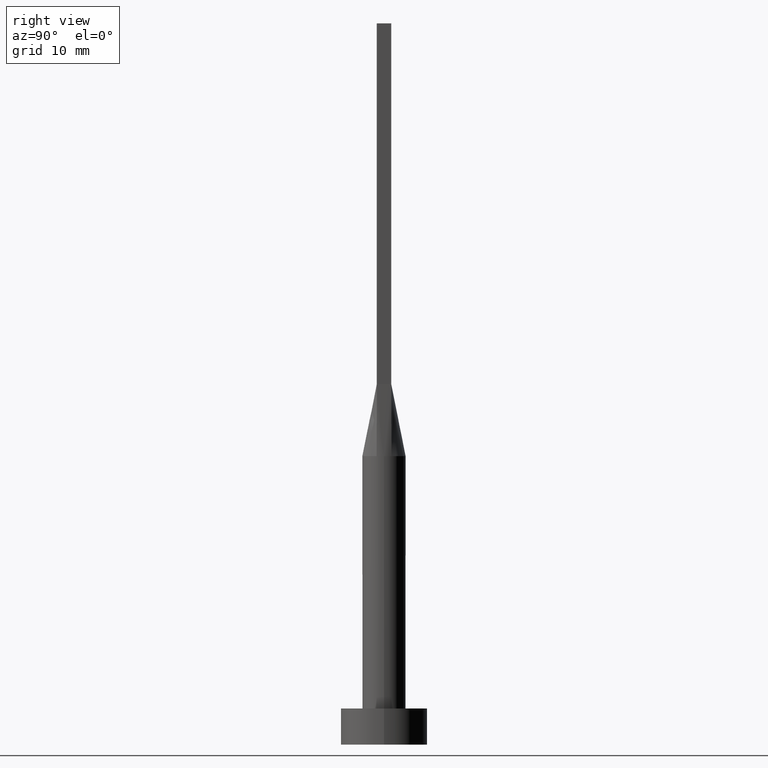
[diagram: clean part render]
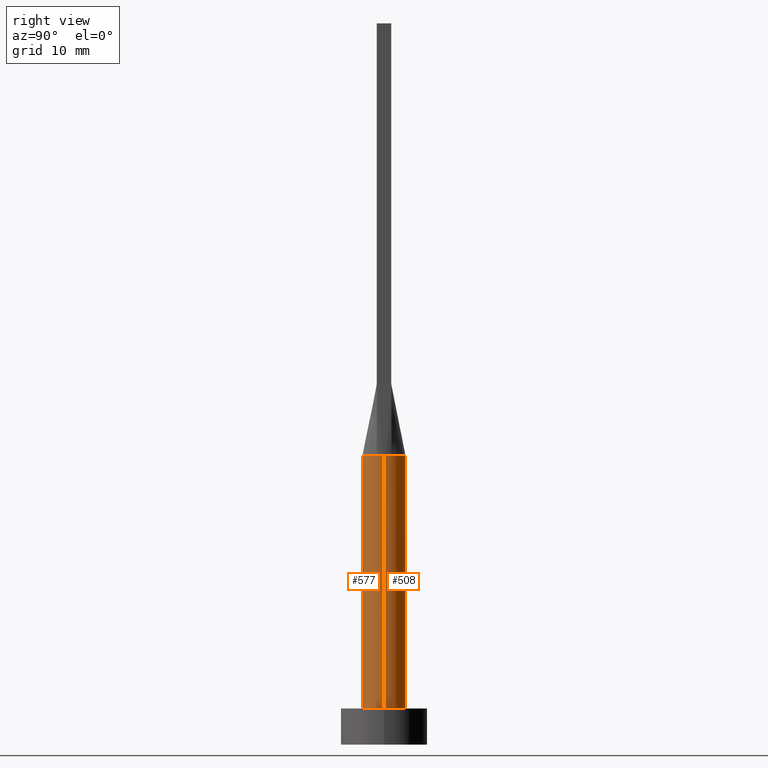
[diagram: same view with one multi-face feature highlighted, each face labeled with its STEP entity id]
A machine part, right view. The highlighted faces form ONE feature: a constant-radius fillet chain: 2 tangent blend faces with common blend radius 3 mm. The faces share edges in the B-rep.
Their STEP definitions:
[1] entity #508 (Cylinder):
#1 = B_SPLINE_CURVE_WITH_KNOTS ( 'NONE', 3,
 ( #343, #110, #436, #561, #565, #244, #160, #196, #381, #192, #434, #560, #569, #388, #119, #246, #157, #336 ),
 .UNSPECIFIED., .F., .F.,
 ( 4, 2, 2, 2, 2, 2, 2, 2, 4 ),
 ( 0.000000000000000000, 0.1249999999999998890, 0.2499999999999997780, 0.3749999999999997780, 0.4999999999999997780, 0.6249999999999997780, 0.7499999999999997780, 0.8749999999999998890, 1.000000000000000000 ),
 .UNSPECIFIED. ) ;
#6 = DIRECTION ( 'NONE',  ( -0.000000000000000000, -0.000000000000000000, -1.000000000000000000 ) ) ;
#32 = VERTEX_POINT ( 'NONE', #358 ) ;
#33 = CARTESIAN_POINT ( 'NONE',  ( 0.000000000000000000, 0.000000000000000000, 40.00000000000000000 ) ) ;
#38 = CARTESIAN_POINT ( 'NONE',  ( 3.000000000000000444, 3.673940397442060361E-16, 40.00000000000000000 ) ) ;
#45 = AXIS2_PLACEMENT_3D ( 'NONE', #169, #533, #166 ) ;
#46 = CARTESIAN_POINT ( 'NONE',  ( -3.000000000000000444, 0.000000000000000000, 5.000000000000000000 ) ) ;
#56 = CIRCLE ( 'NONE', #45, 3.000000000000000444 ) ;
#63 = AXIS2_PLACEMENT_3D ( 'NONE', #33, #202, #349 ) ;
#71 = CYLINDRICAL_SURFACE ( 'NONE', #310, 3.000000000000000444 ) ;
#93 = EDGE_CURVE ( 'NONE', #330, #32, #438, .T. ) ;
#95 = ORIENTED_EDGE ( 'NONE', *, *, #441, .F. ) ;
#106 = VERTEX_POINT ( 'NONE', #46 ) ;
#110 = CARTESIAN_POINT ( 'NONE',  ( 2.739088299662392867, 1.246032108968142538, 40.00000000000000711 ) ) ;
#114 = CIRCLE ( 'NONE', #63, 3.000000000000000444 ) ;
#118 = EDGE_CURVE ( 'NONE', #457, #106, #408, .T. ) ;
#119 = CARTESIAN_POINT ( 'NONE',  ( -2.314486317179579977, 1.928337902455808051, 40.00000000000000000 ) ) ;
#128 = CARTESIAN_POINT ( 'NONE',  ( 0.000000000000000000, 0.000000000000000000, 40.00000000000000000 ) ) ;
#139 = CARTESIAN_POINT ( 'NONE',  ( 2.819412401233197141, 1.025240989080170806, 40.00000000000000000 ) ) ;
#153 = ORIENTED_EDGE ( 'NONE', *, *, #425, .F. ) ;
#157 = CARTESIAN_POINT ( 'NONE',  ( -2.739088299662392423, 1.246032108968142316, 40.00000000000000000 ) ) ;
#158 = ORIENTED_EDGE ( 'NONE', *, *, #93, .T. ) ;
#160 = CARTESIAN_POINT ( 'NONE',  ( 1.338960936578149630, 2.706038443291637563, 40.00000000000000000 ) ) ;
#164 = EDGE_CURVE ( 'NONE', #32, #106, #56, .T. ) ;
#166 = DIRECTION ( 'NONE',  ( 1.000000000000000000, 0.000000000000000000, 0.000000000000000000 ) ) ;
#169 = CARTESIAN_POINT ( 'NONE',  ( 0.000000000000000000, 0.000000000000000000, 5.000000000000000000 ) ) ;
#192 = CARTESIAN_POINT ( 'NONE',  ( -0.3502136323054376721, 2.999999999999999112, 39.99999999999999289 ) ) ;
#194 = VERTEX_POINT ( 'NONE', #340 ) ;
#196 = CARTESIAN_POINT ( 'NONE',  ( 0.6998073349918605413, 2.936959335800557014, 40.00000000000000000 ) ) ;
#202 = DIRECTION ( 'NONE',  ( 0.000000000000000000, 0.000000000000000000, 1.000000000000000000 ) ) ;
#219 = FACE_OUTER_BOUND ( 'NONE', #539, .T. ) ;
#244 = CARTESIAN_POINT ( 'NONE',  ( 1.627925520694712080, 2.539128397820340943, 40.00000000000000000 ) ) ;
#246 = CARTESIAN_POINT ( 'NONE',  ( -2.625980160873452096, 1.476334031700886396, 39.99999999999998579 ) ) ;
#248 = CIRCLE ( 'NONE', #374, 3.000000000000000444 ) ;
#262 = DIRECTION ( 'NONE',  ( 1.000000000000000000, 0.000000000000000000, 0.000000000000000000 ) ) ;
#294 = DIRECTION ( 'NONE',  ( -1.000000000000000000, 0.000000000000000000, 0.000000000000000000 ) ) ;
#297 = VECTOR ( 'NONE', #6, 1000.000000000000000 ) ;
#305 = VECTOR ( 'NONE', #501, 1000.000000000000000 ) ;
#310 = AXIS2_PLACEMENT_3D ( 'NONE', #433, #342, #294 ) ;
#330 = VERTEX_POINT ( 'NONE', #357 ) ;
#336 = CARTESIAN_POINT ( 'NONE',  ( -2.819429393986302657, 1.025247261300842760, 40.00000000000000000 ) ) ;
#340 = CARTESIAN_POINT ( 'NONE',  ( -2.819429393986302657, 1.025247261300842760, 40.00000000000000000 ) ) ;
#342 = DIRECTION ( 'NONE',  ( -0.000000000000000000, -0.000000000000000000, -1.000000000000000000 ) ) ;
#343 = CARTESIAN_POINT ( 'NONE',  ( 2.819412401233197141, 1.025240989080170806, 40.00000000000000000 ) ) ;
#349 = DIRECTION ( 'NONE',  ( 1.000000000000000000, 0.000000000000000000, 0.000000000000000000 ) ) ;
#357 = CARTESIAN_POINT ( 'NONE',  ( 3.000000000000000444, 7.514166843208536743E-18, 39.99999999999999289 ) ) ;
#358 = CARTESIAN_POINT ( 'NONE',  ( 3.000000000000000444, 3.673940397442060361E-16, 5.000000000000000000 ) ) ;
#374 = AXIS2_PLACEMENT_3D ( 'NONE', #128, #546, #262 ) ;
#377 = ORIENTED_EDGE ( 'NONE', *, *, #164, .T. ) ;
#380 = VERTEX_POINT ( 'NONE', #139 ) ;
#381 = CARTESIAN_POINT ( 'NONE',  ( 0.3502136323054376721, 3.000000000000000444, 40.00000000000000000 ) ) ;
#383 = EDGE_CURVE ( 'NONE', #330, #380, #248, .T. ) ;
#388 = CARTESIAN_POINT ( 'NONE',  ( -2.115507543051069916, 2.149870311632977593, 39.99999999999999289 ) ) ;
#408 = LINE ( 'NONE', #581, #297 ) ;
#425 = EDGE_CURVE ( 'NONE', #380, #194, #1, .T. ) ;
#433 = CARTESIAN_POINT ( 'NONE',  ( 0.000000000000000000, 0.000000000000000000, 40.00000000000000000 ) ) ;
#434 = CARTESIAN_POINT ( 'NONE',  ( -0.6998073349918608743, 2.936959335800557014, 40.00000000000000000 ) ) ;
#436 = CARTESIAN_POINT ( 'NONE',  ( 2.625980160873452540, 1.476334031700886618, 40.00000000000000000 ) ) ;
#438 = LINE ( 'NONE', #38, #305 ) ;
#441 = EDGE_CURVE ( 'NONE', #194, #457, #114, .T. ) ;
#457 = VERTEX_POINT ( 'NONE', #511 ) ;
#501 = DIRECTION ( 'NONE',  ( -0.000000000000000000, -0.000000000000000000, -1.000000000000000000 ) ) ;
#508 = ADVANCED_FACE ( 'NONE', ( #219 ), #71, .T. ) ;
#511 = CARTESIAN_POINT ( 'NONE',  ( -3.000000000000000444, -1.370010780910363192E-16, 39.99999999999999289 ) ) ;
#514 = ORIENTED_EDGE ( 'NONE', *, *, #383, .F. ) ;
#533 = DIRECTION ( 'NONE',  ( 0.000000000000000000, 0.000000000000000000, 1.000000000000000000 ) ) ;
#539 = EDGE_LOOP ( 'NONE', ( #514, #158, #377, #554, #95, #153 ) ) ;
#546 = DIRECTION ( 'NONE',  ( 0.000000000000000000, 0.000000000000000000, 1.000000000000000000 ) ) ;
#554 = ORIENTED_EDGE ( 'NONE', *, *, #118, .F. ) ;
#560 = CARTESIAN_POINT ( 'NONE',  ( -1.338960936578149408, 2.706038443291637119, 39.99999999999999289 ) ) ;
#561 = CARTESIAN_POINT ( 'NONE',  ( 2.314486317179579977, 1.928337902455807384, 40.00000000000000000 ) ) ;
#565 = CARTESIAN_POINT ( 'NONE',  ( 2.115507543051069916, 2.149870311632976705, 40.00000000000000711 ) ) ;
#569 = CARTESIAN_POINT ( 'NONE',  ( -1.627925520694712747, 2.539128397820341831, 40.00000000000000711 ) ) ;
#581 = CARTESIAN_POINT ( 'NONE',  ( -3.000000000000000444, 0.000000000000000000, 40.00000000000000000 ) ) ;
[2] entity #577 (Cylinder):
#6 = DIRECTION ( 'NONE',  ( -0.000000000000000000, -0.000000000000000000, -1.000000000000000000 ) ) ;
#9 = CARTESIAN_POINT ( 'NONE',  ( 0.000000000000000000, 0.000000000000000000, 40.00000000000000000 ) ) ;
#18 = AXIS2_PLACEMENT_3D ( 'NONE', #277, #467, #54 ) ;
#21 = VERTEX_POINT ( 'NONE', #317 ) ;
#23 = ORIENTED_EDGE ( 'NONE', *, *, #478, .T. ) ;
#32 = VERTEX_POINT ( 'NONE', #358 ) ;
#36 = DIRECTION ( 'NONE',  ( 1.000000000000000000, 0.000000000000000000, 0.000000000000000000 ) ) ;
#38 = CARTESIAN_POINT ( 'NONE',  ( 3.000000000000000444, 3.673940397442060361E-16, 40.00000000000000000 ) ) ;
#42 = DIRECTION ( 'NONE',  ( 0.000000000000000000, 0.000000000000000000, 1.000000000000000000 ) ) ;
#46 = CARTESIAN_POINT ( 'NONE',  ( -3.000000000000000444, 0.000000000000000000, 5.000000000000000000 ) ) ;
#54 = DIRECTION ( 'NONE',  ( -1.000000000000000000, 0.000000000000000000, 0.000000000000000000 ) ) ;
#55 = ORIENTED_EDGE ( 'NONE', *, *, #241, .F. ) ;
#57 = AXIS2_PLACEMENT_3D ( 'NONE', #9, #42, #456 ) ;
#93 = EDGE_CURVE ( 'NONE', #330, #32, #438, .T. ) ;
#97 = ORIENTED_EDGE ( 'NONE', *, *, #118, .T. ) ;
#106 = VERTEX_POINT ( 'NONE', #46 ) ;
#118 = EDGE_CURVE ( 'NONE', #457, #106, #408, .T. ) ;
#131 = AXIS2_PLACEMENT_3D ( 'NONE', #528, #483, #36 ) ;
#133 = ORIENTED_EDGE ( 'NONE', *, *, #134, .F. ) ;
#134 = EDGE_CURVE ( 'NONE', #243, #330, #525, .T. ) ;
#159 = DIRECTION ( 'NONE',  ( 1.000000000000000000, 0.000000000000000000, 0.000000000000000000 ) ) ;
#184 = CIRCLE ( 'NONE', #200, 3.000000000000000444 ) ;
#190 = CIRCLE ( 'NONE', #131, 3.000000000000000444 ) ;
#200 = AXIS2_PLACEMENT_3D ( 'NONE', #462, #286, #421 ) ;
#241 = EDGE_CURVE ( 'NONE', #457, #21, #190, .T. ) ;
#243 = VERTEX_POINT ( 'NONE', #476 ) ;
#267 = EDGE_LOOP ( 'NONE', ( #429, #133, #534, #55, #97, #23 ) ) ;
#277 = CARTESIAN_POINT ( 'NONE',  ( 0.000000000000000000, 0.000000000000000000, 40.00000000000000000 ) ) ;
#286 = DIRECTION ( 'NONE',  ( 0.000000000000000000, 0.000000000000000000, 1.000000000000000000 ) ) ;
#297 = VECTOR ( 'NONE', #6, 1000.000000000000000 ) ;
#305 = VECTOR ( 'NONE', #501, 1000.000000000000000 ) ;
#317 = CARTESIAN_POINT ( 'NONE',  ( -2.819413526938078007, -1.025241406939941369, 40.00000000000000000 ) ) ;
#330 = VERTEX_POINT ( 'NONE', #357 ) ;
#338 = FACE_OUTER_BOUND ( 'NONE', #267, .T. ) ;
#357 = CARTESIAN_POINT ( 'NONE',  ( 3.000000000000000444, 7.514166843208536743E-18, 39.99999999999999289 ) ) ;
#358 = CARTESIAN_POINT ( 'NONE',  ( 3.000000000000000444, 3.673940397442060361E-16, 5.000000000000000000 ) ) ;
#384 = DIRECTION ( 'NONE',  ( 0.000000000000000000, 0.000000000000000000, 1.000000000000000000 ) ) ;
#401 = AXIS2_PLACEMENT_3D ( 'NONE', #426, #384, #159 ) ;
#408 = LINE ( 'NONE', #581, #297 ) ;
#421 = DIRECTION ( 'NONE',  ( 1.000000000000000000, 0.000000000000000000, 0.000000000000000000 ) ) ;
#426 = CARTESIAN_POINT ( 'NONE',  ( 0.000000000000000000, 0.000000000000000000, 5.000000000000000000 ) ) ;
#429 = ORIENTED_EDGE ( 'NONE', *, *, #93, .F. ) ;
#438 = LINE ( 'NONE', #38, #305 ) ;
#456 = DIRECTION ( 'NONE',  ( 1.000000000000000000, 8.881784197001252323E-16, 0.000000000000000000 ) ) ;
#457 = VERTEX_POINT ( 'NONE', #511 ) ;
#462 = CARTESIAN_POINT ( 'NONE',  ( 0.000000000000000000, 0.000000000000000000, 40.00000000000000000 ) ) ;
#463 = CIRCLE ( 'NONE', #401, 3.000000000000000444 ) ;
#467 = DIRECTION ( 'NONE',  ( -0.000000000000000000, -0.000000000000000000, -1.000000000000000000 ) ) ;
#476 = CARTESIAN_POINT ( 'NONE',  ( 2.819430526142641558, -1.025247683279450817, 40.00000000000000000 ) ) ;
#478 = EDGE_CURVE ( 'NONE', #106, #32, #463, .T. ) ;
#483 = DIRECTION ( 'NONE',  ( 0.000000000000000000, 0.000000000000000000, 1.000000000000000000 ) ) ;
#488 = EDGE_CURVE ( 'NONE', #21, #243, #184, .T. ) ;
#501 = DIRECTION ( 'NONE',  ( -0.000000000000000000, -0.000000000000000000, -1.000000000000000000 ) ) ;
#511 = CARTESIAN_POINT ( 'NONE',  ( -3.000000000000000444, -1.370010780910363192E-16, 39.99999999999999289 ) ) ;
#513 = CYLINDRICAL_SURFACE ( 'NONE', #18, 3.000000000000000444 ) ;
#525 = CIRCLE ( 'NONE', #57, 3.000000000000000444 ) ;
#528 = CARTESIAN_POINT ( 'NONE',  ( 0.000000000000000000, 0.000000000000000000, 40.00000000000000000 ) ) ;
#534 = ORIENTED_EDGE ( 'NONE', *, *, #488, .F. ) ;
#577 = ADVANCED_FACE ( 'NONE', ( #338 ), #513, .T. ) ;
#581 = CARTESIAN_POINT ( 'NONE',  ( -3.000000000000000444, 0.000000000000000000, 40.00000000000000000 ) ) ;